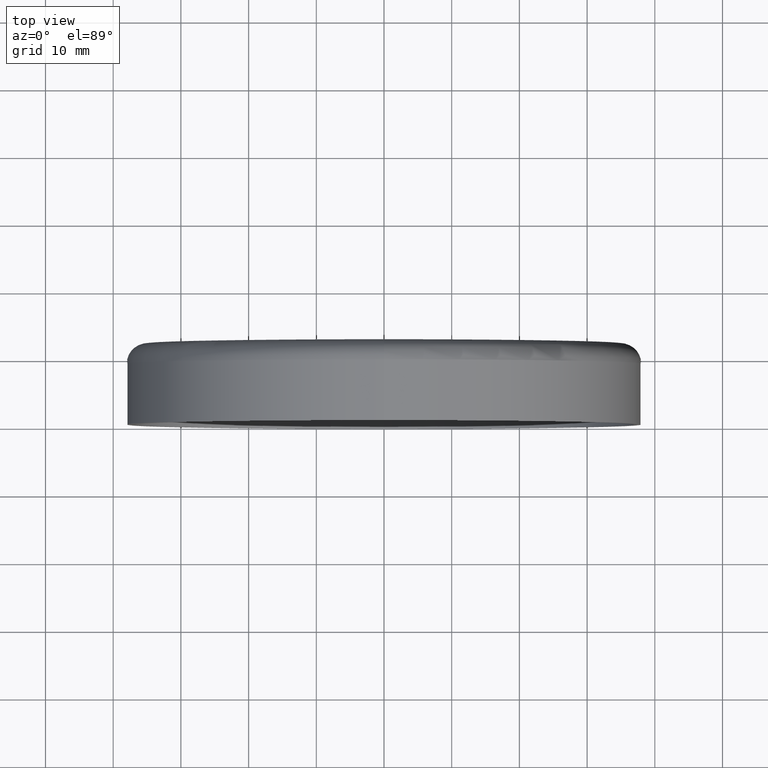
[diagram: clean part render]
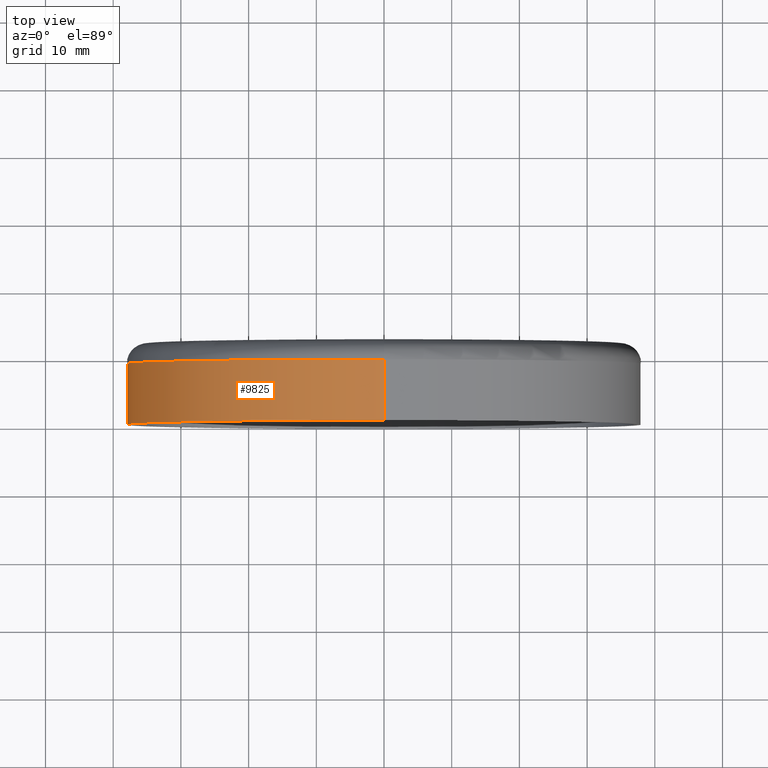
[diagram: same view with one face highlighted and labeled with its STEP entity id]
A machine part, top view. The second image highlights one B-rep face of the part: STEP entity #9825.
In plain terms, the highlighted cylindrical surface (partial cylindrical patch) has radius 38 mm, axis along (-0, -1, -0).
Its self-contained STEP definition (entity closure, byte-faithful):
#98 = ORIENTED_EDGE ( 'NONE', *, *, #14164, .F. ) ;
#1112 = EDGE_CURVE ( 'NONE', #3849, #16010, #1683, .T. ) ;
#1683 = CIRCLE ( 'NONE', #13796, 38.00000000000000711 ) ;
#2007 = CARTESIAN_POINT ( 'NONE',  ( 0.000000000000000000, 0.000000000000000000, 0.000000000000000000 ) ) ;
#2017 = DIRECTION ( 'NONE',  ( -0.000000000000000000, -1.000000000000000000, -0.000000000000000000 ) ) ;
#2116 = LINE ( 'NONE', #14433, #15104 ) ;
#2394 = DIRECTION ( 'NONE',  ( 0.000000000000000000, 0.000000000000000000, -1.000000000000000000 ) ) ;
#2677 = VERTEX_POINT ( 'NONE', #14003 ) ;
#3776 = AXIS2_PLACEMENT_3D ( 'NONE', #14842, #9784, #8740 ) ;
#3849 = VERTEX_POINT ( 'NONE', #9206 ) ;
#4232 = LINE ( 'NONE', #6307, #8104 ) ;
#5621 = ORIENTED_EDGE ( 'NONE', *, *, #8344, .T. ) ;
#6307 = CARTESIAN_POINT ( 'NONE',  ( 4.653657836759942730E-15, 0.000000000000000000, 38.00000000000000711 ) ) ;
#8104 = VECTOR ( 'NONE', #8824, 1000.000000000000000 ) ;
#8344 = EDGE_CURVE ( 'NONE', #2677, #13219, #9955, .T. ) ;
#8402 = ORIENTED_EDGE ( 'NONE', *, *, #1112, .F. ) ;
#8473 = DIRECTION ( 'NONE',  ( -0.000000000000000000, -1.000000000000000000, -0.000000000000000000 ) ) ;
#8740 = DIRECTION ( 'NONE',  ( 0.000000000000000000, 0.000000000000000000, -1.000000000000000000 ) ) ;
#8748 = EDGE_LOOP ( 'NONE', ( #98, #5621, #12177, #8402 ) ) ;
#8824 = DIRECTION ( 'NONE',  ( -0.000000000000000000, -1.000000000000000000, -0.000000000000000000 ) ) ;
#9206 = CARTESIAN_POINT ( 'NONE',  ( 4.653657836759942730E-15, 0.000000000000000000, 38.00000000000000711 ) ) ;
#9784 = DIRECTION ( 'NONE',  ( -0.000000000000000000, -1.000000000000000000, -0.000000000000000000 ) ) ;
#9789 = CARTESIAN_POINT ( 'NONE',  ( 0.000000000000000000, 0.000000000000000000, -38.00000000000000711 ) ) ;
#9818 = AXIS2_PLACEMENT_3D ( 'NONE', #2007, #8473, #2394 ) ;
#9825 = ADVANCED_FACE ( 'NONE', ( #14777 ), #14575, .T. ) ;
#9955 = CIRCLE ( 'NONE', #3776, 38.00000000000000711 ) ;
#11329 = CARTESIAN_POINT ( 'NONE',  ( 0.000000000000000000, 9.000000000000001776, -38.00000000000000711 ) ) ;
#11678 = DIRECTION ( 'NONE',  ( 0.000000000000000000, 0.000000000000000000, -1.000000000000000000 ) ) ;
#12177 = ORIENTED_EDGE ( 'NONE', *, *, #12568, .T. ) ;
#12568 = EDGE_CURVE ( 'NONE', #13219, #16010, #2116, .T. ) ;
#12895 = DIRECTION ( 'NONE',  ( -0.000000000000000000, -1.000000000000000000, -0.000000000000000000 ) ) ;
#13219 = VERTEX_POINT ( 'NONE', #11329 ) ;
#13796 = AXIS2_PLACEMENT_3D ( 'NONE', #15445, #12895, #11678 ) ;
#14003 = CARTESIAN_POINT ( 'NONE',  ( 4.653657836759942730E-15, 9.000000000000001776, 38.00000000000000711 ) ) ;
#14164 = EDGE_CURVE ( 'NONE', #2677, #3849, #4232, .T. ) ;
#14433 = CARTESIAN_POINT ( 'NONE',  ( 0.000000000000000000, 0.000000000000000000, -38.00000000000000711 ) ) ;
#14575 = CYLINDRICAL_SURFACE ( 'NONE', #9818, 38.00000000000000711 ) ;
#14777 = FACE_OUTER_BOUND ( 'NONE', #8748, .T. ) ;
#14842 = CARTESIAN_POINT ( 'NONE',  ( 0.000000000000000000, 9.000000000000001776, 0.000000000000000000 ) ) ;
#15104 = VECTOR ( 'NONE', #2017, 1000.000000000000000 ) ;
#15445 = CARTESIAN_POINT ( 'NONE',  ( 0.000000000000000000, 0.000000000000000000, 0.000000000000000000 ) ) ;
#16010 = VERTEX_POINT ( 'NONE', #9789 ) ;